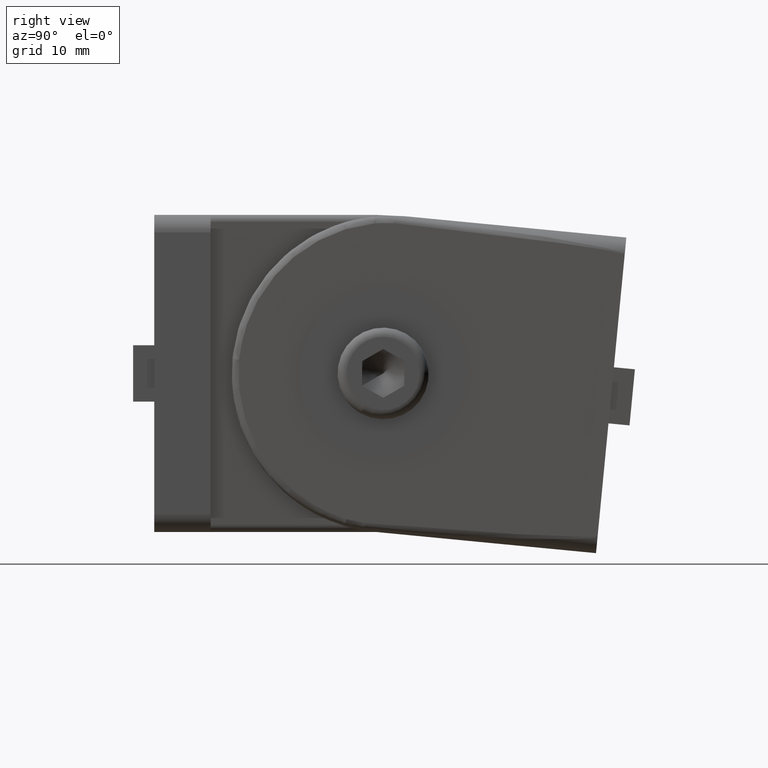
[diagram: clean part render]
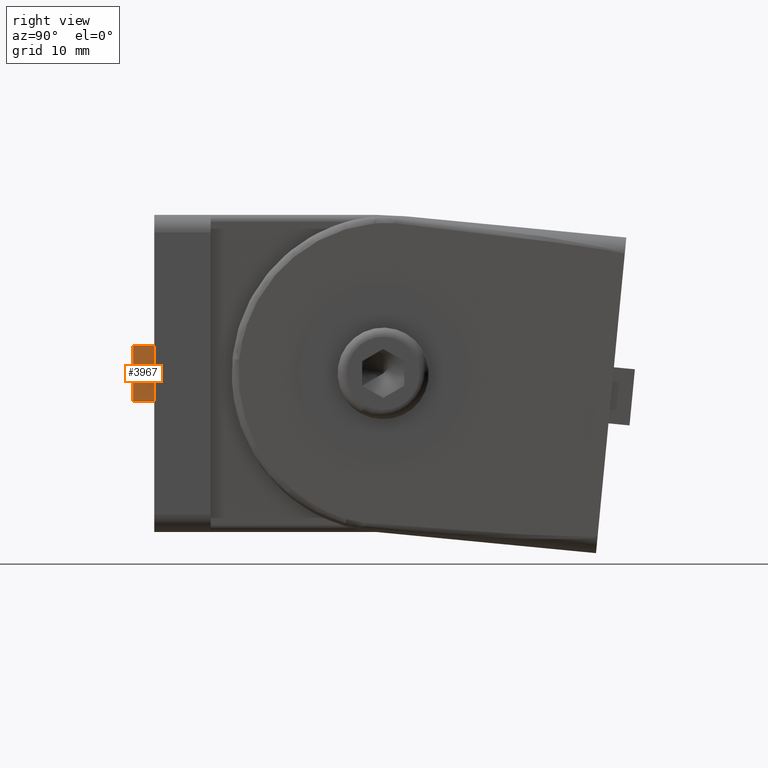
[diagram: same view with one face highlighted and labeled with its STEP entity id]
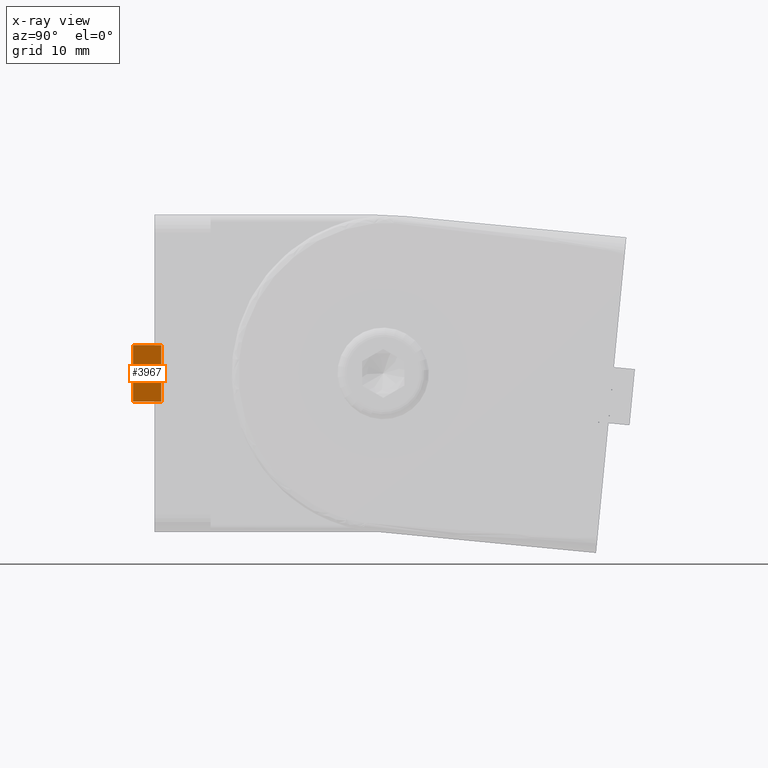
[diagram: x-ray of the same camera — body ghosted, the highlighted face saturated]
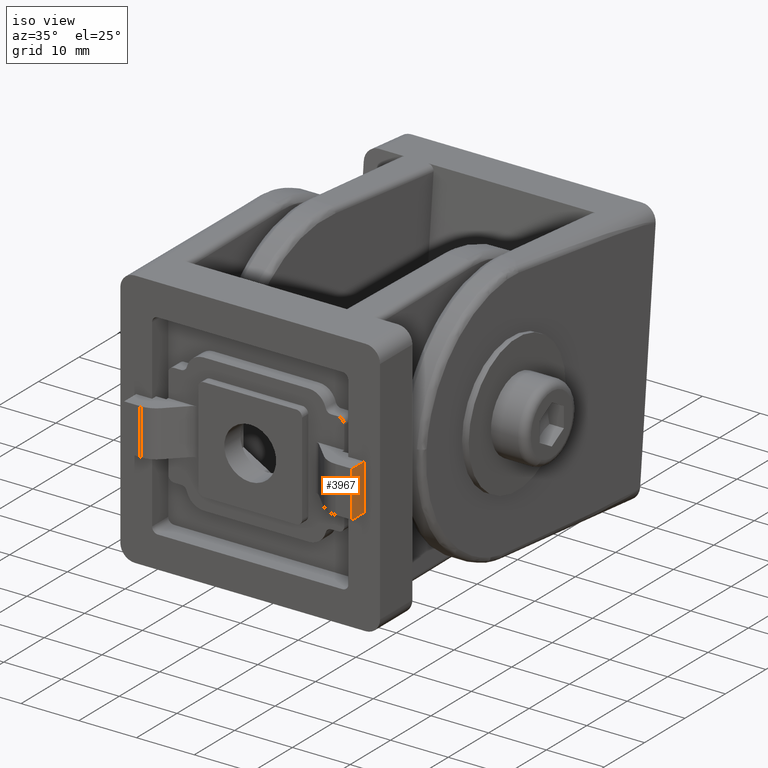
[diagram: same view with one face highlighted and labeled with its STEP entity id]
A machine part, right view. The second image highlights one B-rep face of the part: STEP entity #3967.
The next image is the same camera in x-ray: the body ghosted, the highlighted face saturated — about 0% of this face is hidden behind the body in this view.
A second angle (iso view) of the same face is appended — the face is thin or edge-on in the first view.
In plain terms, the highlighted planar face has unit normal (1, 0, -0).
Its self-contained STEP definition (entity closure, byte-faithful):
#241=LINE('',#7066,#581);
#243=LINE('',#7070,#583);
#244=LINE('',#7072,#584);
#245=LINE('',#7073,#585);
#581=VECTOR('',#4972,8.);
#583=VECTOR('',#4976,4.);
#584=VECTOR('',#4977,8.);
#585=VECTOR('',#4978,4.);
#811=PLANE('',#4275);
#1110=FACE_OUTER_BOUND('',#1352,.T.);
#1352=EDGE_LOOP('',(#3177,#3178,#3179,#3180));
#1932=VERTEX_POINT('',#7063);
#1933=VERTEX_POINT('',#7065);
#1934=VERTEX_POINT('',#7069);
#1935=VERTEX_POINT('',#7071);
#2402=EDGE_CURVE('',#1933,#1932,#241,.T.);
#2404=EDGE_CURVE('',#1934,#1932,#243,.T.);
#2405=EDGE_CURVE('',#1935,#1934,#244,.T.);
#2406=EDGE_CURVE('',#1935,#1933,#245,.T.);
#3177=ORIENTED_EDGE('',*,*,#2404,.F.);
#3178=ORIENTED_EDGE('',*,*,#2405,.F.);
#3179=ORIENTED_EDGE('',*,*,#2406,.T.);
#3180=ORIENTED_EDGE('',*,*,#2402,.T.);
#3967=ADVANCED_FACE('',(#1110),#811,.T.);
#4275=AXIS2_PLACEMENT_3D('',#7068,#4974,#4975);
#4972=DIRECTION('',(0.,-1.,0.));
#4974=DIRECTION('center_axis',(-1.,0.,0.));
#4975=DIRECTION('ref_axis',(0.,0.,1.));
#4976=DIRECTION('',(0.,0.,-1.));
#4977=DIRECTION('',(0.,-1.,0.));
#4978=DIRECTION('',(0.,0.,-1.));
#7063=CARTESIAN_POINT('',(-19.7500000000001,-4.,3.));
#7065=CARTESIAN_POINT('',(-19.7500000000001,4.,3.));
#7066=CARTESIAN_POINT('',(-19.7500000000001,4.,3.));
#7068=CARTESIAN_POINT('Origin',(-19.7500000000001,4.,7.));
#7069=CARTESIAN_POINT('',(-19.7500000000001,-4.,7.));
#7070=CARTESIAN_POINT('',(-19.7500000000001,-4.,7.));
#7071=CARTESIAN_POINT('',(-19.7500000000001,4.,7.));
#7072=CARTESIAN_POINT('',(-19.7500000000001,4.,7.));
#7073=CARTESIAN_POINT('',(-19.7500000000001,4.,7.));